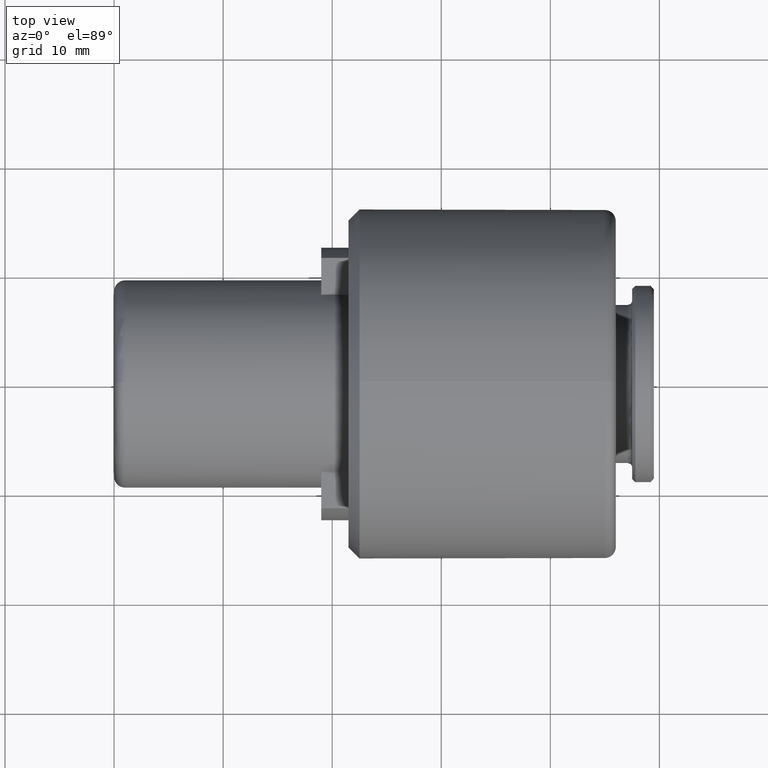
[diagram: clean part render]
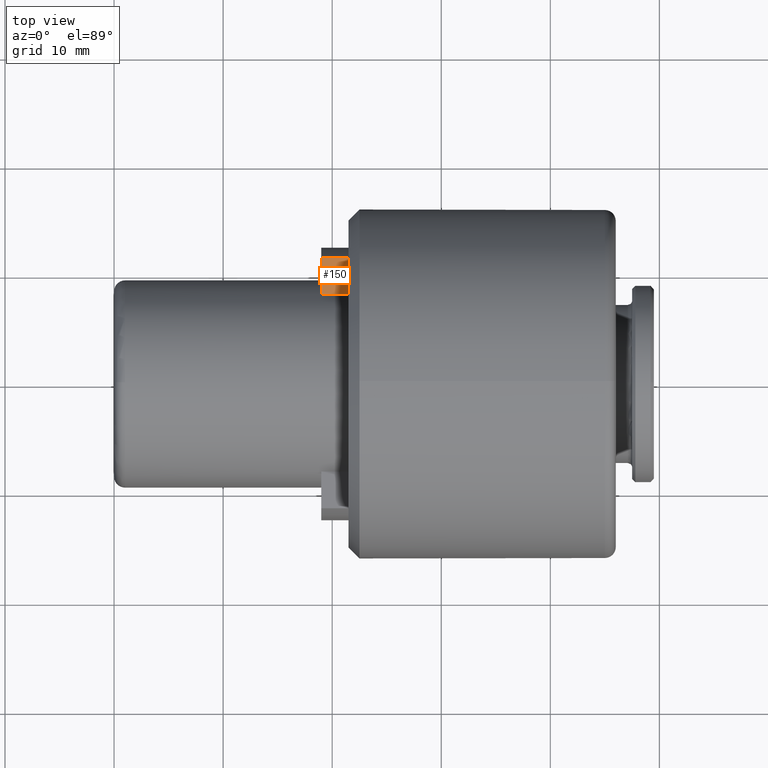
[diagram: same view with one face highlighted and labeled with its STEP entity id]
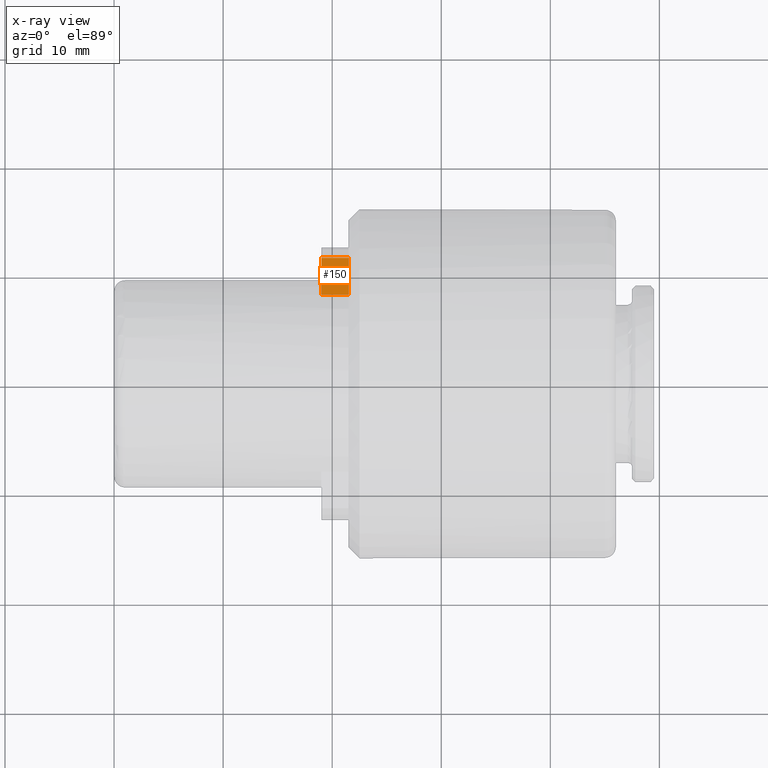
[diagram: x-ray of the same camera — body ghosted, the highlighted face saturated]
A machine part, top view. The second image highlights one B-rep face of the part: STEP entity #150.
The next image is the same camera in x-ray: the body ghosted, the highlighted face saturated — about 0% of this face is hidden behind the body in this view.
In plain terms, the highlighted planar face has unit normal (-0, 0, 1).
Its self-contained STEP definition (entity closure, byte-faithful):
#24 = DIRECTION ( 'NONE',  ( -1.000000000000000000, -0.0000000000000000000, -0.0000000000000000000 ) ) ;
#41 = CARTESIAN_POINT ( 'NONE',  ( 19.00000000000000000, 11.47813138099999900, 4.950000000000000200 ) ) ;
#97 = CARTESIAN_POINT ( 'NONE',  ( 19.00000000000000400, 11.47813138101095600, 4.949999999999999300 ) ) ;
#103 = VECTOR ( 'NONE', #277, 1000.000000000000000 ) ;
#150 = ADVANCED_FACE ( 'NONE', ( #294 ), #947, .T. ) ;
#217 = EDGE_CURVE ( 'NONE', #317, #274, #749, .T. ) ;
#274 = VERTEX_POINT ( 'NONE', #986 ) ;
#276 = ORIENTED_EDGE ( 'NONE', *, *, #1224, .T. ) ;
#277 = DIRECTION ( 'NONE',  ( 0.0000000000000000000, 1.000000000000000000, 0.0000000000000000000 ) ) ;
#293 = VECTOR ( 'NONE', #613, 1000.000000000000000 ) ;
#294 = FACE_OUTER_BOUND ( 'NONE', #1222, .T. ) ;
#304 = DIRECTION ( 'NONE',  ( 0.0000000000000000000, -1.000000000000000000, 0.0000000000000000000 ) ) ;
#307 = ORIENTED_EDGE ( 'NONE', *, *, #468, .T. ) ;
#316 = CARTESIAN_POINT ( 'NONE',  ( 21.50000000000000000, 0.0000000000000000000, 4.949999992079996900 ) ) ;
#317 = VERTEX_POINT ( 'NONE', #1175 ) ;
#342 = VECTOR ( 'NONE', #1106, 1000.000000000000000 ) ;
#344 = ORIENTED_EDGE ( 'NONE', *, *, #217, .T. ) ;
#353 = CARTESIAN_POINT ( 'NONE',  ( 20.25000000000000000, 11.47813138099999900, 4.950000000000000200 ) ) ;
#403 = CARTESIAN_POINT ( 'NONE',  ( 19.00000000000000000, 9.793307296500000100, 4.950000000000000200 ) ) ;
#452 = DIRECTION ( 'NONE',  ( -0.0000000000000000000, 0.0000000000000000000, 1.000000000000000000 ) ) ;
#468 = EDGE_CURVE ( 'NONE', #725, #590, #822, .T. ) ;
#477 = ORIENTED_EDGE ( 'NONE', *, *, #786, .T. ) ;
#521 = CARTESIAN_POINT ( 'NONE',  ( 21.50000000000000000, 11.47813138271872700, 4.949999996039999000 ) ) ;
#590 = VERTEX_POINT ( 'NONE', #97 ) ;
#613 = DIRECTION ( 'NONE',  ( 0.0000000000000000000, -1.000000000000000000, 0.0000000000000000000 ) ) ;
#634 = AXIS2_PLACEMENT_3D ( 'NONE', #41, #452, #304 ) ;
#725 = VERTEX_POINT ( 'NONE', #521 ) ;
#749 = LINE ( 'NONE', #990, #342 ) ;
#786 = EDGE_CURVE ( 'NONE', #590, #317, #1202, .T. ) ;
#822 = LINE ( 'NONE', #353, #1026 ) ;
#947 = PLANE ( 'NONE',  #634 ) ;
#986 = CARTESIAN_POINT ( 'NONE',  ( 21.50000000000000000, 8.108483213437139600, 4.949999997717991800 ) ) ;
#990 = CARTESIAN_POINT ( 'NONE',  ( 13.83991106400000100, 8.108483209995304400, 4.950000003355985900 ) ) ;
#1026 = VECTOR ( 'NONE', #24, 1000.000000000000000 ) ;
#1091 = LINE ( 'NONE', #316, #103 ) ;
#1106 = DIRECTION ( 'NONE',  ( 1.000000000000000000, -0.0000000000000000000, -0.0000000000000000000 ) ) ;
#1175 = CARTESIAN_POINT ( 'NONE',  ( 18.99999999934733800, 8.108483211019670700, 4.950000001677992100 ) ) ;
#1202 = LINE ( 'NONE', #403, #293 ) ;
#1222 = EDGE_LOOP ( 'NONE', ( #276, #307, #477, #344 ) ) ;
#1224 = EDGE_CURVE ( 'NONE', #274, #725, #1091, .T. ) ;